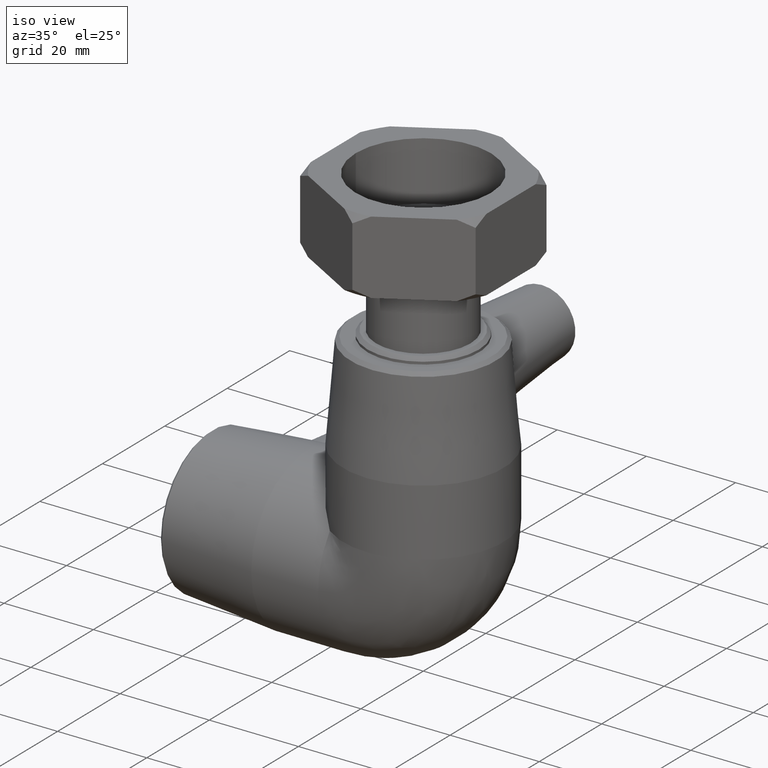
[diagram: clean part render]
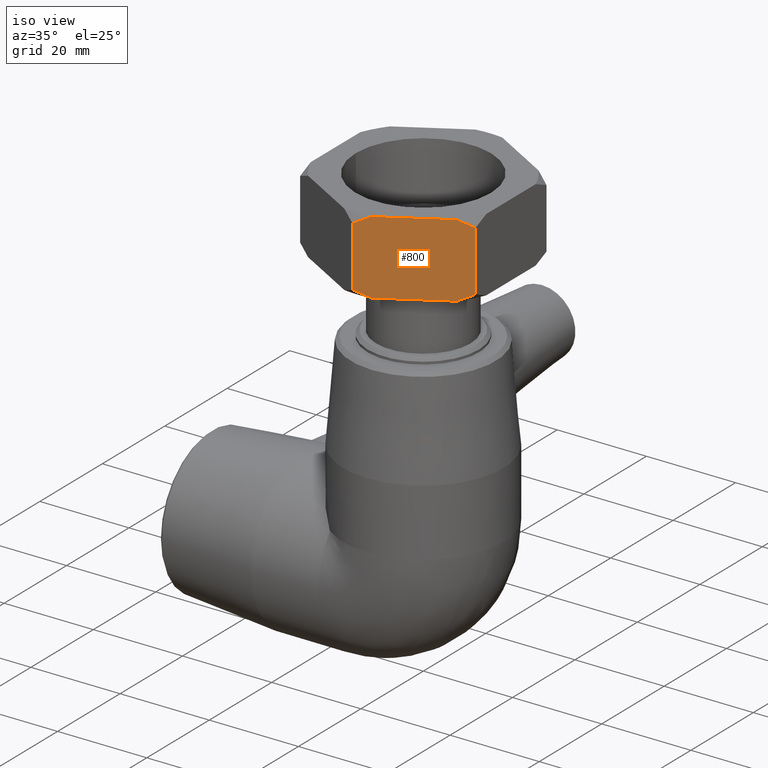
[diagram: same view with one face highlighted and labeled with its STEP entity id]
A machine part, iso view. The second image highlights one B-rep face of the part: STEP entity #800.
In plain terms, the highlighted planar face has unit normal (0.5, -0.866, -0).
Its self-contained STEP definition (entity closure, byte-faithful):
#21=LINE('',#1259,#40);
#22=LINE('',#1265,#41);
#23=LINE('',#1271,#42);
#24=LINE('',#1276,#43);
#40=VECTOR('',#999,15.8123662230703);
#41=VECTOR('',#1000,13.4709);
#42=VECTOR('',#1001,15.8123662230705);
#43=VECTOR('',#1002,13.4709);
#59=(
BOUNDED_CURVE()
B_SPLINE_CURVE(2,(#1255,#1256,#1257),.UNSPECIFIED.,.F.,.F.)
B_SPLINE_CURVE_WITH_KNOTS((3,3),(0.,0.377184116175009),.UNSPECIFIED.)
CURVE()
GEOMETRIC_REPRESENTATION_ITEM()
RATIONAL_B_SPLINE_CURVE((1.,1.00310458904714,1.))
REPRESENTATION_ITEM('')
);
#60=(
BOUNDED_CURVE()
B_SPLINE_CURVE(2,(#1261,#1262,#1263),.UNSPECIFIED.,.F.,.F.)
B_SPLINE_CURVE_WITH_KNOTS((3,3),(0.,0.377184116175009),.UNSPECIFIED.)
CURVE()
GEOMETRIC_REPRESENTATION_ITEM()
RATIONAL_B_SPLINE_CURVE((1.,1.00310458904713,1.))
REPRESENTATION_ITEM('')
);
#61=(
BOUNDED_CURVE()
B_SPLINE_CURVE(2,(#1267,#1268,#1269),.UNSPECIFIED.,.F.,.F.)
B_SPLINE_CURVE_WITH_KNOTS((3,3),(0.,0.377184116175012),.UNSPECIFIED.)
CURVE()
GEOMETRIC_REPRESENTATION_ITEM()
RATIONAL_B_SPLINE_CURVE((1.,1.00310458904727,1.))
REPRESENTATION_ITEM('')
);
#62=(
BOUNDED_CURVE()
B_SPLINE_CURVE(2,(#1273,#1274,#1275),.UNSPECIFIED.,.F.,.F.)
B_SPLINE_CURVE_WITH_KNOTS((3,3),(0.,0.377184116175013),.UNSPECIFIED.)
CURVE()
GEOMETRIC_REPRESENTATION_ITEM()
RATIONAL_B_SPLINE_CURVE((1.,1.00310458904717,1.))
REPRESENTATION_ITEM('')
);
#100=PLANE('',#870);
#169=FACE_OUTER_BOUND('',#235,.T.);
#235=EDGE_LOOP('',(#577,#578,#579,#580,#581,#582,#583,#584));
#392=VERTEX_POINT('',#1253);
#393=VERTEX_POINT('',#1254);
#394=VERTEX_POINT('',#1258);
#395=VERTEX_POINT('',#1260);
#396=VERTEX_POINT('',#1264);
#397=VERTEX_POINT('',#1266);
#398=VERTEX_POINT('',#1270);
#399=VERTEX_POINT('',#1272);
#472=EDGE_CURVE('',#392,#393,#59,.T.);
#473=EDGE_CURVE('',#394,#392,#21,.T.);
#474=EDGE_CURVE('',#395,#394,#60,.T.);
#475=EDGE_CURVE('',#396,#395,#22,.T.);
#476=EDGE_CURVE('',#397,#396,#61,.T.);
#477=EDGE_CURVE('',#398,#397,#23,.T.);
#478=EDGE_CURVE('',#399,#398,#62,.T.);
#479=EDGE_CURVE('',#393,#399,#24,.T.);
#577=ORIENTED_EDGE('',*,*,#472,.F.);
#578=ORIENTED_EDGE('',*,*,#473,.F.);
#579=ORIENTED_EDGE('',*,*,#474,.F.);
#580=ORIENTED_EDGE('',*,*,#475,.F.);
#581=ORIENTED_EDGE('',*,*,#476,.F.);
#582=ORIENTED_EDGE('',*,*,#477,.F.);
#583=ORIENTED_EDGE('',*,*,#478,.F.);
#584=ORIENTED_EDGE('',*,*,#479,.F.);
#800=ADVANCED_FACE('',(#169),#100,.T.);
#870=AXIS2_PLACEMENT_3D('',#1252,#997,#998);
#997=DIRECTION('center_axis',(0.500000000000001,-0.866025403784438,-1.38777878078145E-16));
#998=DIRECTION('ref_axis',(-0.866025403784438,-0.500000000000001,0.));
#999=DIRECTION('',(0.866025403784438,0.500000000000001,-2.40370335797945E-16));
#1000=DIRECTION('',(2.77555756156289E-16,0.,1.));
#1001=DIRECTION('',(-0.866025403784438,-0.500000000000001,2.40370335797945E-16));
#1002=DIRECTION('',(-2.77555756156289E-16,0.,-1.));
#1252=CARTESIAN_POINT('Origin',(19.6745816295259,-11.359125,81.));
#1253=CARTESIAN_POINT('',(16.6842462363239,-13.0855959442324,81.));
#1254=CARTESIAN_POINT('',(19.6745816295259,-11.359125,79.48545));
#1255=CARTESIAN_POINT('Ctrl Pts',(16.684246236324,-13.0855959442324,81.));
#1256=CARTESIAN_POINT('Ctrl Pts',(18.1278564261456,-12.252127212534,80.378452212534));
#1257=CARTESIAN_POINT('Ctrl Pts',(19.6745816295259,-11.359125,79.48545));
#1258=CARTESIAN_POINT('',(2.99033539320202,-20.9917790557676,81.));
#1259=CARTESIAN_POINT('',(6.23659247214443,-19.1175516573815,81.));
#1260=CARTESIAN_POINT('',(5.21804821573824E-14,-22.71825,79.48545));
#1261=CARTESIAN_POINT('Ctrl Pts',(5.98926684109837E-14,-22.71825,79.48545));
#1262=CARTESIAN_POINT('Ctrl Pts',(1.54672520338036,-21.825247787466,80.378452212534));
#1263=CARTESIAN_POINT('Ctrl Pts',(2.99033539320198,-20.9917790557676,81.));
#1264=CARTESIAN_POINT('',(4.90232501058265E-14,-22.71825,66.01455));
#1265=CARTESIAN_POINT('',(4.9960036108132E-14,-22.71825,72.75));
#1266=CARTESIAN_POINT('',(2.99033539320196,-20.9917790557676,64.5));
#1267=CARTESIAN_POINT('Ctrl Pts',(2.99033539320199,-20.9917790557676,64.5));
#1268=CARTESIAN_POINT('Ctrl Pts',(1.54672520338036,-21.825247787466,65.121547787466));
#1269=CARTESIAN_POINT('Ctrl Pts',(3.74863330032288E-14,-22.71825,66.01455));
#1270=CARTESIAN_POINT('',(16.684246236324,-13.0855959442324,64.5));
#1271=CARTESIAN_POINT('',(10.7802424721444,-16.494274106778,64.5));
#1272=CARTESIAN_POINT('',(19.6745816295259,-11.359125,66.01455));
#1273=CARTESIAN_POINT('Ctrl Pts',(19.6745816295259,-11.359125,66.01455));
#1274=CARTESIAN_POINT('Ctrl Pts',(18.1278564261456,-12.2521272125339,65.1215477874661));
#1275=CARTESIAN_POINT('Ctrl Pts',(16.6842462363239,-13.0855959442324,64.5));
#1276=CARTESIAN_POINT('',(19.6745816295259,-11.359125,72.75));